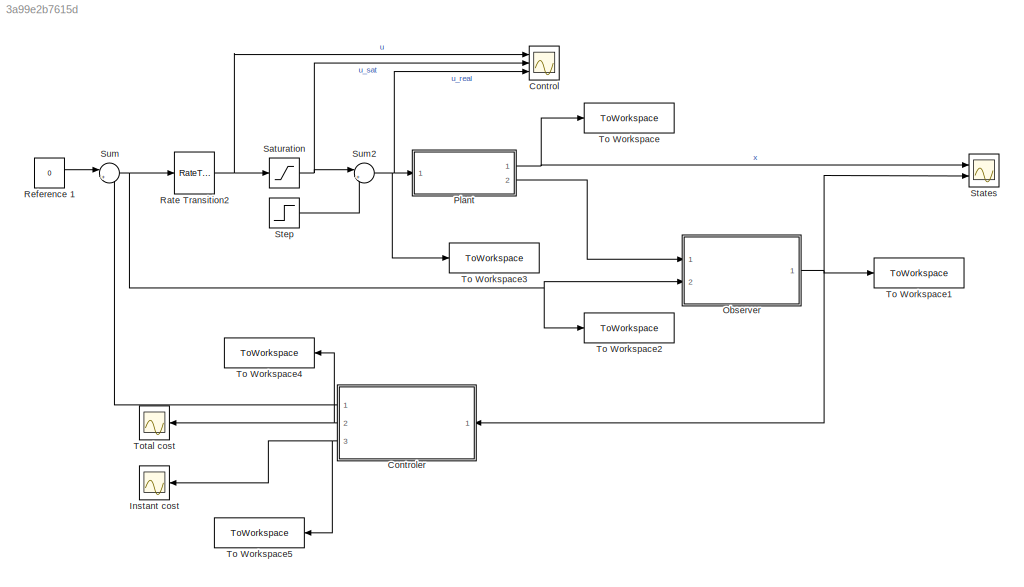
MODEL slx_3a99e2b7615d
KIND model
CONFIG AbsTol = auto
CONFIG EnableMultiTasking = off
CONFIG FixedStep = h_plant
CONFIG MaxStep = auto
CONFIG MinStep = auto
CONFIG RelTol = 1e-3
CONFIG SampleTimeConstraint = Unconstrained
CONFIG SolverName = ode4
CONFIG StartTime = 0.0
CONFIG StopTime = 30
BLOCK [Scope] Control
  Floating = off
  NumInputPorts = 3
  Ports = [3]
  ScopeSpecificationString = Simulink.scopes.TimeScopeBlockCfg('CurrentConfiguration', extmgr.ConfigurationSet(extmgr.Configuration('Core','General UI',true),extmgr.Configuration('Core','Source UI',true),extmgr.Configuration('Sources','WiredSimulink',true),extmgr.Configuration('Visuals','Time Domain',true,'SerializedDisplays',{struct('MinYLimReal','-33.0177','MaxYLimReal','66.53009','YLabelReal','','MinYLimMag','0.00000','Max...<+1369ch>
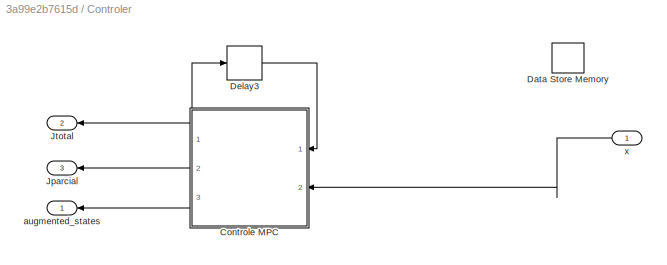
BLOCK [SubSystem] Controler
  Ports = [1, 3]
  RequestExecContextInheritance = off
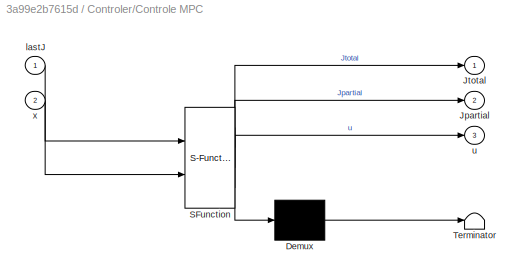
BLOCK [SubSystem] Controler/Controle MPC
  ErrorFcn = Stateflow.Translate.translate
  PermitHierarchicalResolution = ExplicitOnly
  Ports = [2, 3]
  RequestExecContextInheritance = off
  SFBlockType = MATLAB Function
  TreatAsAtomicUnit = on
BLOCK [Demux] Controler/Controle MPC/ Demux 
  Outputs = 1
  Ports = [1, 1]
BLOCK [S-Function] Controler/Controle MPC/ SFunction 
  EnableBusSupport = on
  FunctionName = sf_sfun
  Parameters = C,Gamma,N,Phi,Q0,Q1,Q2,UM,Um,YM,Ym,n
  PortCounts = [2 4]
  Ports = [2, 4]
  SFcnIsStateOwnerBlock = off
  SFunctionDeploymentMode = off
  Tag = Stateflow S-Function 2
BLOCK [Terminator] Controler/Controle MPC/ Terminator 
BLOCK [Outport] Controler/Controle MPC/Jpartial
  Port = 2
BLOCK [Outport] Controler/Controle MPC/Jtotal
BLOCK [Inport] Controler/Controle MPC/lastJ
BLOCK [Outport] Controler/Controle MPC/u
  Port = 3
BLOCK [Inport] Controler/Controle MPC/x
  Port = 2
BLOCK [DataStoreMemory] Controler/Data Store Memory
  DataStoreName = Fs
  InitialValue = zeros(1,n,1,N)
  OutDataTypeStr = double
  ReadBeforeWriteMsg = warning
  ShowAdditionalParam = off
  SignalType = real
  VectorParams1D = off
  WriteAfterReadMsg = warning
  WriteAfterWriteMsg = warning
BLOCK [Delay] Controler/Delay3
  DelayLength = 1
  InputPortMap = u0
  NameLocation = top
  Ports = [1, 1]
  SampleTime = h
BLOCK [Outport] Controler/Jparcial
  Port = 3
BLOCK [Outport] Controler/Jtotal
  Port = 2
BLOCK [Outport] Controler/augmented_states
BLOCK [Inport] Controler/x
BLOCK [Scope] Instant cost
  Floating = off
  NumInputPorts = 1
  Ports = [1]
  ScopeSpecificationString = Simulink.scopes.TimeScopeBlockCfg('CurrentConfiguration', extmgr.ConfigurationSet(extmgr.Configuration('Core','General UI',true),extmgr.Configuration('Core','Source UI',true),extmgr.Configuration('Sources','WiredSimulink',true,'DataLoggingVariableName','ScopeData1'),extmgr.Configuration('Visuals','Time Domain',true,'SerializedDisplays',{struct('MinYLimReal','-241.44681','MaxYLimReal','2173.02129',...<+1458ch>
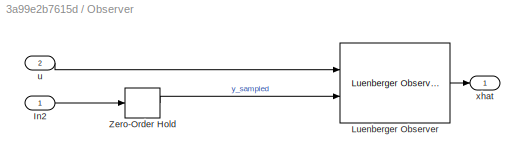
BLOCK [SubSystem] Observer
  Ports = [2, 1]
  RequestExecContextInheritance = off
BLOCK [Inport] Observer/In2
BLOCK [Reference] Observer/Luenberger Observer  REF=eeLuenbergerObserver/Luenberger Observer
  Ports = [2, 1]
  SourceBlock = eeLuenbergerObserver/Luenberger Observer
  SourceProductBaseCode = PS
  SourceType = Luenberger Observer
BLOCK [ZeroOrderHold] Observer/Zero-Order Hold
  SampleTime = h
BLOCK [Inport] Observer/u
  Port = 2
BLOCK [Outport] Observer/xhat
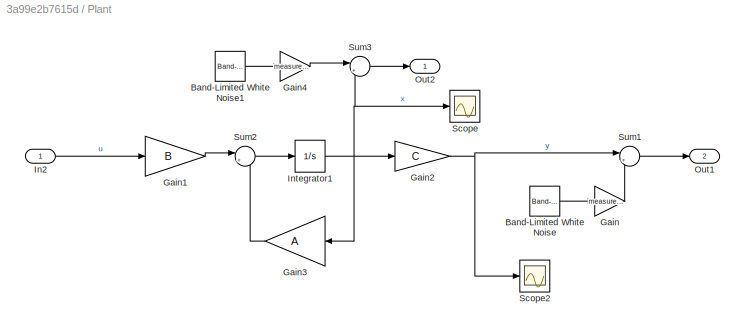
BLOCK [SubSystem] Plant
  Ports = [1, 2]
  RequestExecContextInheritance = off
BLOCK [Reference] Plant/Band-Limited White Noise  REF=simulink/Sources/Band-Limited
White Noise
  Ports = [0, 1]
  SourceBlock = simulink/Sources/Band-Limited\nWhite Noise
  SourceProductBaseCode = SL
  SourceType = Band-Limited White Noise.
BLOCK [Reference] Plant/Band-Limited White Noise1  REF=simulink/Sources/Band-Limited
White Noise
  Ports = [0, 1]
  SourceBlock = simulink/Sources/Band-Limited\nWhite Noise
  SourceProductBaseCode = SL
  SourceType = Band-Limited White Noise.
BLOCK [Gain] Plant/Gain
  Gain = measure_noise_gain
BLOCK [Gain] Plant/Gain1
  Gain = B
BLOCK [Gain] Plant/Gain2
  Gain = C
  Multiplication = Matrix(K*u) (u vector)
BLOCK [Gain] Plant/Gain3
  Gain = A
  Multiplication = Matrix(K*u) (u vector)
BLOCK [Gain] Plant/Gain4
  Gain = measure_noise_gain
BLOCK [Inport] Plant/In2
  IconDisplay = Signal name
BLOCK [Integrator] Plant/Integrator1
  InitialCondition = x0
  Ports = [1, 1]
BLOCK [Outport] Plant/Out1
  IconDisplay = Signal name
  Port = 2
BLOCK [Outport] Plant/Out2
  IconDisplay = Signal name
BLOCK [Scope] Plant/Scope
  Floating = off
  NumInputPorts = 1
  Ports = [1]
  ScopeSpecificationString = Simulink.scopes.TimeScopeBlockCfg('CurrentConfiguration', extmgr.ConfigurationSet(extmgr.Configuration('Core','General UI',true),extmgr.Configuration('Core','Source UI',true),extmgr.Configuration('Sources','WiredSimulink',true,'DataLoggingVariableName','ScopeData4'),extmgr.Configuration('Visuals','Time Domain',true,'SerializedDisplays',{struct('MinYLimReal','-12.87437','MaxYLimReal','18.06874','YL...<+1403ch>
BLOCK [Scope] Plant/Scope2
  Floating = off
  NumInputPorts = 1
  Ports = [1]
  ScopeSpecificationString = Simulink.scopes.TimeScopeBlockCfg('CurrentConfiguration', extmgr.ConfigurationSet(extmgr.Configuration('Core','General UI',true),extmgr.Configuration('Core','Source UI',true),extmgr.Configuration('Sources','WiredSimulink',true,'DataLoggingVariableName','ScopeData6'),extmgr.Configuration('Visuals','Time Domain',true,'SerializedDisplays',{struct('MinYLimReal','-1.8718','MaxYLimReal','16.84624','YLab...<+1391ch>
BLOCK [Sum] Plant/Sum1
  Inputs = |++
  Ports = [2, 1]
BLOCK [Sum] Plant/Sum2
  Inputs = |++
  Ports = [2, 1]
BLOCK [Sum] Plant/Sum3
  Inputs = |++
  Ports = [2, 1]
BLOCK [RateTransition] Rate Transition2
  Integrity = off
  OutPortSampleTime = h_plant
  OutPortSampleTimeMultiple = 0.01
BLOCK [Constant] Reference 1
  SampleTime = h
  Value = 0
BLOCK [Saturate] Saturation
  LowerLimit = sat_min
  UpperLimit = sat_max
BLOCK [Scope] States
  Floating = off
  NumInputPorts = 2
  Ports = [2]
  ScopeSpecificationString = Simulink.scopes.TimeScopeBlockCfg('CurrentConfiguration', extmgr.ConfigurationSet(extmgr.Configuration('Core','General UI',true),extmgr.Configuration('Core','Source UI',true),extmgr.Configuration('Sources','WiredSimulink',true,'DataLoggingVariableName','ScopeData3'),extmgr.Configuration('Visuals','Time Domain',true,'SerializedDisplays',{struct('MinYLimReal','-66.49369','MaxYLimReal','33.73733','YL...<+1472ch>
BLOCK [Step] Step
  After = wind_final_value
  Before = wind_initial_value
  SampleTime = h_plant
  Time = wind_steptime
BLOCK [Sum] Sum
  Inputs = |++
  Ports = [2, 1]
BLOCK [Sum] Sum2
  Inputs = |++
  Ports = [2, 1]
BLOCK [ToWorkspace] To Workspace
  FixptAsFi = on
  MaxDataPoints = inf
  Ports = [1]
  SampleTime = -1
  SaveFormat = Timeseries
  VariableName = x
BLOCK [ToWorkspace] To Workspace1
  FixptAsFi = on
  MaxDataPoints = inf
  Ports = [1]
  SampleTime = -1
  SaveFormat = Timeseries
  VariableName = xhat
BLOCK [ToWorkspace] To Workspace2
  FixptAsFi = on
  MaxDataPoints = inf
  Ports = [1]
  SampleTime = -1
  SaveFormat = Timeseries
  VariableName = u
BLOCK [ToWorkspace] To Workspace3
  FixptAsFi = on
  MaxDataPoints = inf
  Ports = [1]
  SampleTime = -1
  SaveFormat = Timeseries
  VariableName = u_real
BLOCK [ToWorkspace] To Workspace4
  FixptAsFi = on
  MaxDataPoints = inf
  Ports = [1]
  SampleTime = -1
  SaveFormat = Timeseries
  VariableName = Jtotal
BLOCK [ToWorkspace] To Workspace5
  FixptAsFi = on
  MaxDataPoints = inf
  Ports = [1]
  SampleTime = -1
  SaveFormat = Timeseries
  VariableName = Jpartial
BLOCK [Scope] Total cost
  Floating = off
  NumInputPorts = 1
  Ports = [1]
  ScopeSpecificationString = Simulink.scopes.TimeScopeBlockCfg('CurrentConfiguration', extmgr.ConfigurationSet(extmgr.Configuration('Core','General UI',true),extmgr.Configuration('Core','Source UI',true),extmgr.Configuration('Sources','WiredSimulink',true,'DataLoggingVariableName','ScopeData2'),extmgr.Configuration('Visuals','Time Domain',true,'SerializedDisplays',{struct('MinYLimReal','-185369.34154','MaxYLimReal','3060429.0...<+1444ch>
NET Controler/Controle MPC:1 -> Controler/Delay3:1, Controler/Jtotal:1
LINE Controler/Controle MPC:2 -> Controler/Jparcial:1
LINE Controler/Controle MPC:3 -> Controler/augmented_states:1
LINE Controler/Delay3:1 -> Controler/Controle MPC:1
LINE Controler/x:1 -> Controler/Controle MPC:2
LINE Controler:1 -> Sum:2
NET Controler:2 -> To Workspace4:1, Total cost:1
NET Controler:3 -> Instant cost:1, To Workspace5:1
LINE Observer/In2:1 -> Observer/Zero-Order Hold:1
LINE Observer/Luenberger Observer:1 -> Observer/xhat:1
LINE Observer/Zero-Order Hold:1 -> Observer/Luenberger Observer:2
LINE Observer/u:1 -> Observer/Luenberger Observer:1
NET Observer:1 -> Controler:1, States:2, To Workspace1:1
LINE Plant/Band-Limited White Noise1:1 -> Plant/Gain4:1
LINE Plant/Band-Limited White Noise:1 -> Plant/Gain:1
LINE Plant/Gain1:1 -> Plant/Sum2:1
NET Plant/Gain2:1 -> Plant/Scope2:1, Plant/Sum1:1
LINE Plant/Gain3:1 -> Plant/Sum2:2
LINE Plant/Gain4:1 -> Plant/Sum3:1
LINE Plant/Gain:1 -> Plant/Sum1:2
LINE Plant/In2:1 -> Plant/Gain1:1
NET Plant/Integrator1:1 -> Plant/Gain2:1, Plant/Gain3:1, Plant/Scope:1, Plant/Sum3:2
LINE Plant/Sum1:1 -> Plant/Out1:1
LINE Plant/Sum2:1 -> Plant/Integrator1:1
LINE Plant/Sum3:1 -> Plant/Out2:1
NET Plant:1 -> States:1, To Workspace:1
LINE Plant:2 -> Observer:1
NET Rate Transition2:1 -> Control:1, Saturation:1
LINE Reference 1:1 -> Sum:1
NET Saturation:1 -> Control:2, Sum2:1
LINE Step:1 -> Sum2:2
NET Sum2:1 -> Control:3, Plant:1, To Workspace3:1
NET Sum:1 -> Observer:2, Rate Transition2:1, To Workspace2:1
note: NET lines group one-source signal fan-out (src -> all destinations, sorted); 1:1 wires keep LINE
CHART Controler/Controle MPC states=1 transitions=1
  STATE_LABEL 'eML_blk_kernel()'
  STATE_LABEL 'SCRIPT:\nfunction [Jtotal,Jpartial,u] = fcn(lastJ,Q1,Q2,Q0,n,Phi,Gamma,x,N,C,UM, Um, YM, Ym)\n%#codegen\n\ntStart = tic;\n\ncoder.extrinsic(\'quadprog\');\n\nU = zeros(N,1);\nGain = zeros(2,1);\nJpartial = 0;\nJtotal=0;\nfval = 0;\nz = zeros(N,1);\n\nM0 = [Phi];\ncoder.varsize("Mu");\nMu = [Gamma, zeros(size(Gamma,1), N-1)];\nMu_aux = Mu;\nQtil =  kron(eye((N-1)*(n-1)), Q1);\nRbar = kron(eye(N*size(Gamma,2)), Q2);\nQbar...<+1275ch>'
CHART  states=0 transitions=0
